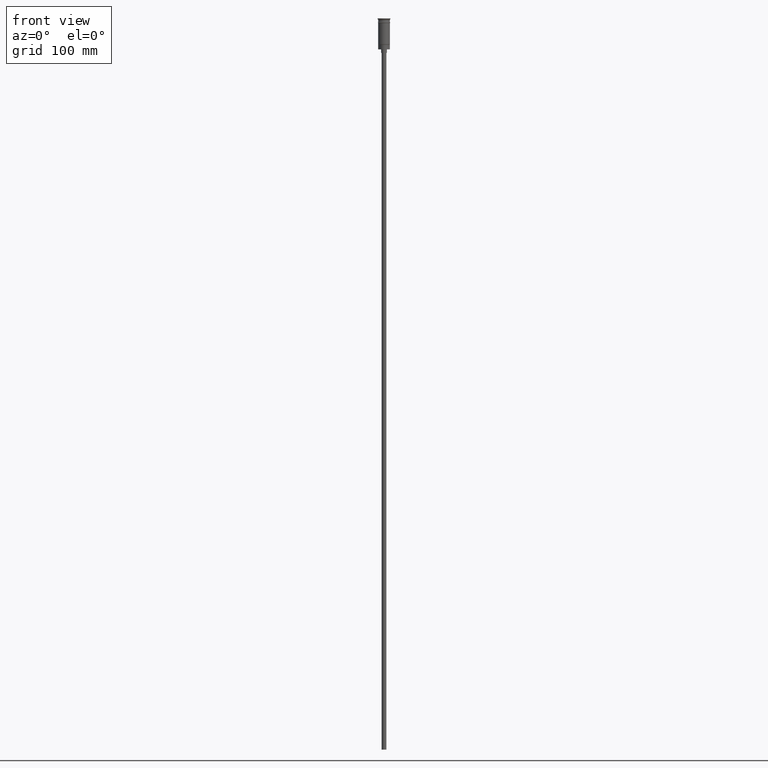
[diagram: clean part render]
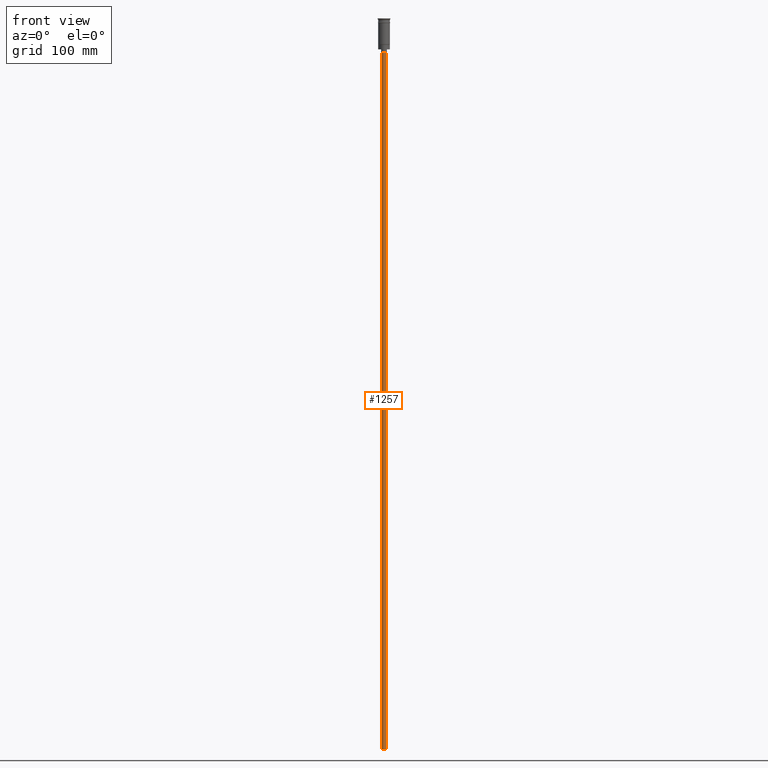
[diagram: same view with one face highlighted and labeled with its STEP entity id]
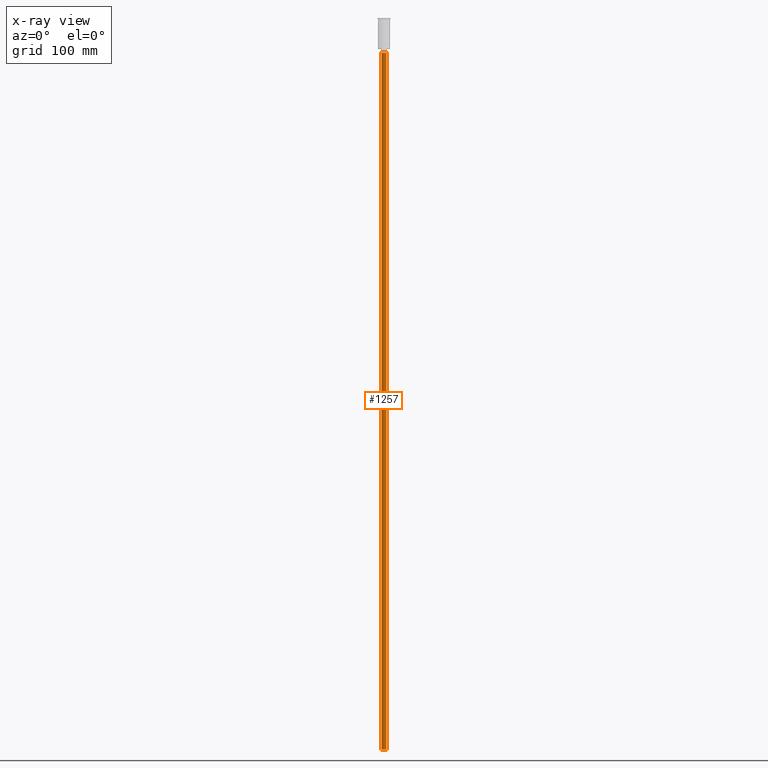
[diagram: x-ray of the same camera — body ghosted, the highlighted face saturated]
A machine part, front view. The second image highlights one B-rep face of the part: STEP entity #1257.
The next image is the same camera in x-ray: the body ghosted, the highlighted face saturated — about 0% of this face is hidden behind the body in this view.
In plain terms, the highlighted cylindrical surface (edge-blend (fillet) strip) has radius 2 mm, axis along (-0, -0, 1).
Its self-contained STEP definition (entity closure, byte-faithful):
#56 = DIRECTION ( 'NONE',  ( -0.000000000000000000, -0.000000000000000000, 1.000000000000000000 ) ) ;
#72 = DIRECTION ( 'NONE',  ( -0.000000000000000000, -0.000000000000000000, 1.000000000000000000 ) ) ;
#170 = CIRCLE ( 'NONE', #898, 2.000000000000000000 ) ;
#191 = ORIENTED_EDGE ( 'NONE', *, *, #688, .F. ) ;
#346 = CARTESIAN_POINT ( 'NONE',  ( -2.000000000000000000, 2.449293598294706414E-16, -29.50000000000000000 ) ) ;
#367 = DIRECTION ( 'NONE',  ( -0.000000000000000000, -0.000000000000000000, 1.000000000000000000 ) ) ;
#381 = EDGE_LOOP ( 'NONE', ( #1297, #191, #614, #1564 ) ) ;
#405 = DIRECTION ( 'NONE',  ( 0.000000000000000000, 0.000000000000000000, -1.000000000000000000 ) ) ;
#456 = CARTESIAN_POINT ( 'NONE',  ( -2.000000000000000000, 2.449293598294706414E-16, -626.5000000000000000 ) ) ;
#480 = EDGE_CURVE ( 'NONE', #1451, #920, #1325, .T. ) ;
#514 = DIRECTION ( 'NONE',  ( -1.000000000000000000, 0.000000000000000000, 0.000000000000000000 ) ) ;
#598 = EDGE_CURVE ( 'NONE', #920, #1562, #170, .T. ) ;
#614 = ORIENTED_EDGE ( 'NONE', *, *, #480, .T. ) ;
#621 = EDGE_CURVE ( 'NONE', #1582, #1562, #1574, .T. ) ;
#633 = CARTESIAN_POINT ( 'NONE',  ( 0.000000000000000000, 0.000000000000000000, -626.5000000000000000 ) ) ;
#643 = DIRECTION ( 'NONE',  ( 0.000000000000000000, 0.000000000000000000, -1.000000000000000000 ) ) ;
#688 = EDGE_CURVE ( 'NONE', #1451, #1582, #1488, .T. ) ;
#711 = CARTESIAN_POINT ( 'NONE',  ( 2.000000000000000000, 0.000000000000000000, -626.5000000000000000 ) ) ;
#731 = FACE_OUTER_BOUND ( 'NONE', #381, .T. ) ;
#747 = CYLINDRICAL_SURFACE ( 'NONE', #1064, 2.000000000000000000 ) ;
#761 = DIRECTION ( 'NONE',  ( 1.000000000000000000, 0.000000000000000000, 0.000000000000000000 ) ) ;
#764 = CARTESIAN_POINT ( 'NONE',  ( 0.000000000000000000, 0.000000000000000000, -29.50000000000000000 ) ) ;
#898 = AXIS2_PLACEMENT_3D ( 'NONE', #764, #643, #514 ) ;
#920 = VERTEX_POINT ( 'NONE', #1155 ) ;
#1061 = VECTOR ( 'NONE', #72, 1000.000000000000000 ) ;
#1064 = AXIS2_PLACEMENT_3D ( 'NONE', #633, #367, #761 ) ;
#1144 = CARTESIAN_POINT ( 'NONE',  ( 0.000000000000000000, 0.000000000000000000, -626.5000000000000000 ) ) ;
#1155 = CARTESIAN_POINT ( 'NONE',  ( 2.000000000000000000, 0.000000000000000000, -29.50000000000000000 ) ) ;
#1212 = CARTESIAN_POINT ( 'NONE',  ( 2.000000000000000000, 0.000000000000000000, -626.5000000000000000 ) ) ;
#1244 = AXIS2_PLACEMENT_3D ( 'NONE', #1144, #405, #1497 ) ;
#1257 = ADVANCED_FACE ( 'NONE', ( #731 ), #747, .T. ) ;
#1297 = ORIENTED_EDGE ( 'NONE', *, *, #621, .F. ) ;
#1325 = LINE ( 'NONE', #1212, #1061 ) ;
#1451 = VERTEX_POINT ( 'NONE', #711 ) ;
#1488 = CIRCLE ( 'NONE', #1244, 2.000000000000000000 ) ;
#1497 = DIRECTION ( 'NONE',  ( -1.000000000000000000, 0.000000000000000000, 0.000000000000000000 ) ) ;
#1562 = VERTEX_POINT ( 'NONE', #346 ) ;
#1564 = ORIENTED_EDGE ( 'NONE', *, *, #598, .T. ) ;
#1568 = VECTOR ( 'NONE', #56, 1000.000000000000000 ) ;
#1570 = CARTESIAN_POINT ( 'NONE',  ( -2.000000000000000000, 2.449293598294706414E-16, -626.5000000000000000 ) ) ;
#1574 = LINE ( 'NONE', #456, #1568 ) ;
#1582 = VERTEX_POINT ( 'NONE', #1570 ) ;